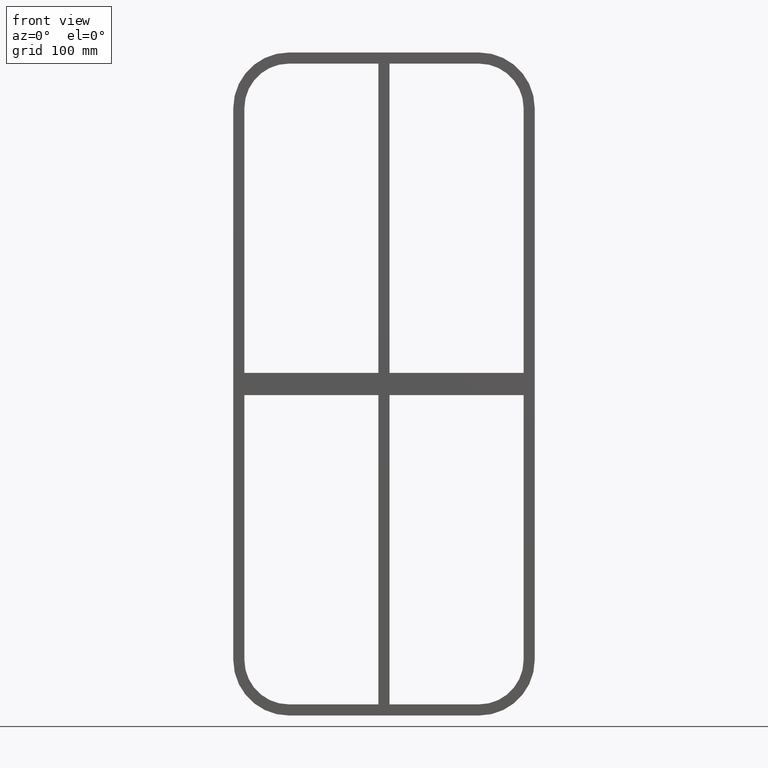
[diagram: clean part render]
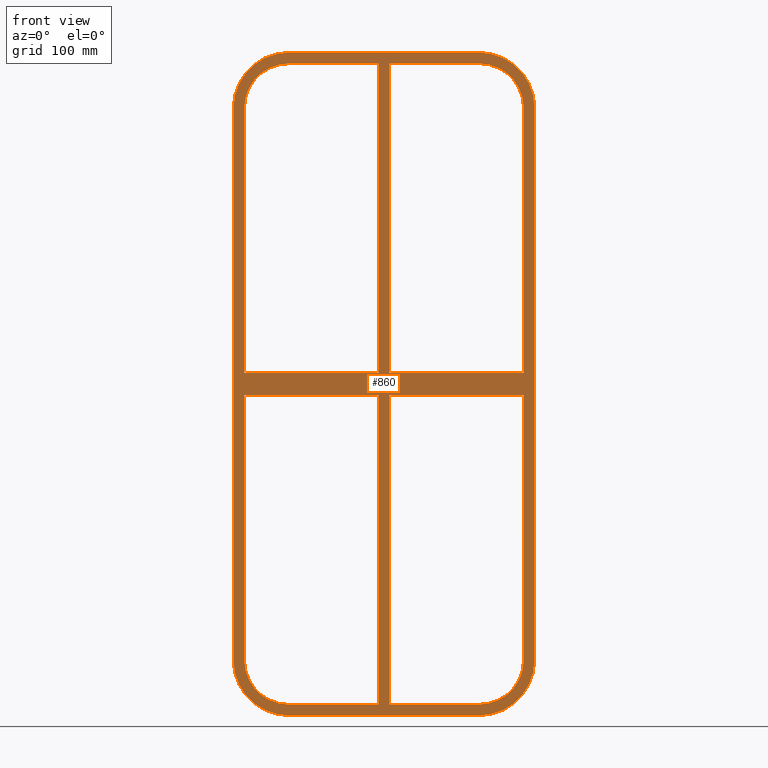
[diagram: same view with one face highlighted and labeled with its STEP entity id]
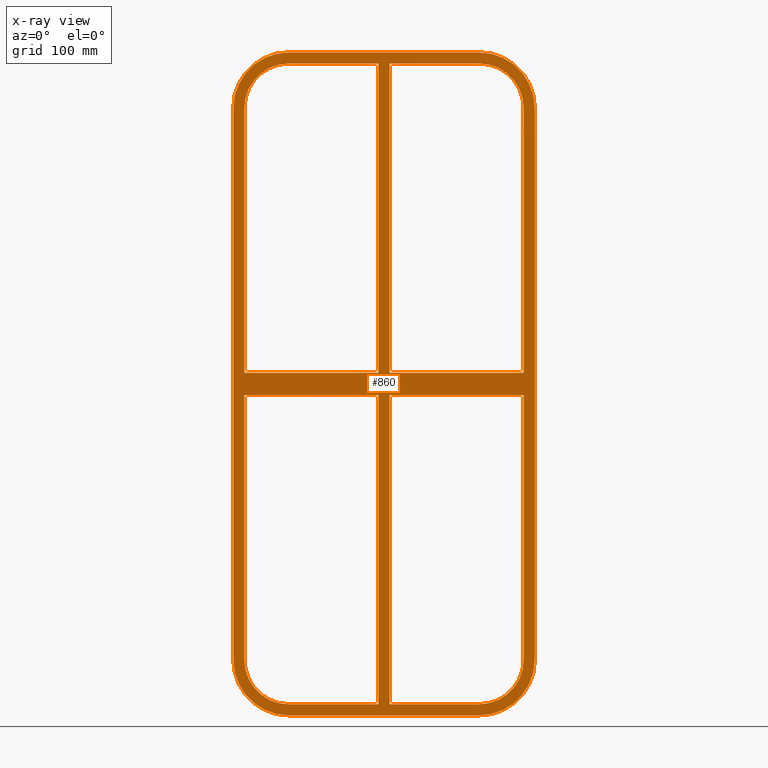
[diagram: x-ray of the same camera — body ghosted, the highlighted face saturated]
A machine part, front view. The second image highlights one B-rep face of the part: STEP entity #860.
The next image is the same camera in x-ray: the body ghosted, the highlighted face saturated — about 0% of this face is hidden behind the body in this view.
In plain terms, the highlighted planar face has unit normal (0, 1, 0).
Its self-contained STEP definition (entity closure, byte-faithful):
#75=CARTESIAN_POINT('',(5.0,-3.0,-10.000000000009333));
#76=VERTEX_POINT('',#75);
#91=CARTESIAN_POINT('',(125.50000000000182,-3.0,-10.00000000000929));
#92=VERTEX_POINT('',#91);
#99=CARTESIAN_POINT('',(125.50000000000182,-3.0,-10.00000000000929));
#100=DIRECTION('',(-1.0,0.0,0.0));
#101=VECTOR('',#100,120.50000000000182);
#102=LINE('',#99,#101);
#103=EDGE_CURVE('',#92,#76,#102,.T.);
#113=CARTESIAN_POINT('',(-5.000000000001457,-3.0,-10.000000000009337));
#114=VERTEX_POINT('',#113);
#123=CARTESIAN_POINT('',(-125.49999999999977,-3.0,-10.000000000009379));
#124=VERTEX_POINT('',#123);
#125=CARTESIAN_POINT('',(-5.00000000000145,-3.0,-10.000000000009337));
#126=DIRECTION('',(-1.0,0.0,0.0));
#127=VECTOR('',#126,120.49999999999832);
#128=LINE('',#125,#127);
#129=EDGE_CURVE('',#114,#124,#128,.T.);
#153=CARTESIAN_POINT('',(5.0,-3.0,10.0));
#154=VERTEX_POINT('',#153);
#163=CARTESIAN_POINT('',(125.4999999999999,-3.0,10.0));
#164=VERTEX_POINT('',#163);
#165=CARTESIAN_POINT('',(5.0,-3.0,10.0));
#166=DIRECTION('',(1.0,0.0,0.0));
#167=VECTOR('',#166,120.49999999999989);
#168=LINE('',#165,#167);
#169=EDGE_CURVE('',#154,#164,#168,.T.);
#195=CARTESIAN_POINT('',(-5.000000000001457,-3.0,10.0));
#196=VERTEX_POINT('',#195);
#211=CARTESIAN_POINT('',(-125.49999999999977,-3.0,10.0));
#212=VERTEX_POINT('',#211);
#219=CARTESIAN_POINT('',(-125.49999999999977,-3.0,10.0));
#220=DIRECTION('',(1.0,0.0,0.0));
#221=VECTOR('',#220,120.49999999999832);
#222=LINE('',#219,#221);
#223=EDGE_CURVE('',#212,#196,#222,.T.);
#242=CARTESIAN_POINT('',(-125.50000000000004,-3.0,248.00000000000006));
#243=VERTEX_POINT('',#242);
#250=CARTESIAN_POINT('',(-125.50000000000004,-3.0,10.0));
#251=DIRECTION('',(0.0,0.0,1.0));
#252=VECTOR('',#251,238.0);
#253=LINE('',#250,#252);
#254=EDGE_CURVE('',#212,#243,#253,.T.);
#273=CARTESIAN_POINT('',(125.50000000000004,-3.0,-248.00000000000006));
#274=VERTEX_POINT('',#273);
#281=CARTESIAN_POINT('',(125.50000000000004,-3.0,-10.000000000009294));
#282=DIRECTION('',(0.0,0.0,-1.0));
#283=VECTOR('',#282,237.99999999999079);
#284=LINE('',#281,#283);
#285=EDGE_CURVE('',#92,#274,#284,.T.);
#296=CARTESIAN_POINT('',(125.50000000000004,-3.0,248.00000000000006));
#297=VERTEX_POINT('',#296);
#298=CARTESIAN_POINT('',(125.50000000000004,-3.0,248.00000000000003));
#299=DIRECTION('',(0.0,0.0,-1.0));
#300=VECTOR('',#299,238.00000000000003);
#301=LINE('',#298,#300);
#302=EDGE_CURVE('',#297,#164,#301,.T.);
#518=CARTESIAN_POINT('',(-5.00000000000151,-3.0,288.00000000000006));
#519=VERTEX_POINT('',#518);
#520=CARTESIAN_POINT('',(-5.000000000001458,-3.0,10.0));
#521=DIRECTION('',(0.0,0.0,1.0));
#522=VECTOR('',#521,278.00000000000006);
#523=LINE('',#520,#522);
#524=EDGE_CURVE('',#196,#519,#523,.T.);
#543=CARTESIAN_POINT('',(5.0,-3.0,288.00000000000006));
#544=VERTEX_POINT('',#543);
#551=CARTESIAN_POINT('',(5.0,-3.0,288.00000000000006));
#552=DIRECTION('',(0.0,0.0,-1.0));
#553=VECTOR('',#552,278.00000000000006);
#554=LINE('',#551,#553);
#555=EDGE_CURVE('',#544,#154,#554,.T.);
#567=CARTESIAN_POINT('',(-5.000000000001403,-3.0,-288.00000000000006));
#568=VERTEX_POINT('',#567);
#575=CARTESIAN_POINT('',(-5.000000000001403,-3.0,-288.00000000000006));
#576=DIRECTION('',(0.0,0.0,1.0));
#577=VECTOR('',#576,277.99999999999068);
#578=LINE('',#575,#577);
#579=EDGE_CURVE('',#568,#114,#578,.T.);
#590=CARTESIAN_POINT('',(5.0,-3.0,-287.99999999998471));
#591=VERTEX_POINT('',#590);
#592=CARTESIAN_POINT('',(5.0,-3.0,-10.000000000009322));
#593=DIRECTION('',(0.0,0.0,-1.0));
#594=VECTOR('',#593,277.99999999997539);
#595=LINE('',#592,#594);
#596=EDGE_CURVE('',#76,#591,#595,.T.);
#615=CARTESIAN_POINT('',(-85.500000000000043,-3.0,-288.00000000000006));
#616=VERTEX_POINT('',#615);
#623=CARTESIAN_POINT('',(-5.0000000000014,-3.0,-288.00000000000006));
#624=DIRECTION('',(-1.0,0.0,0.0));
#625=VECTOR('',#624,80.499999999998636);
#626=LINE('',#623,#625);
#627=EDGE_CURVE('',#568,#616,#626,.T.);
#638=CARTESIAN_POINT('',(85.500000000000043,-3.0,-288.00000000000006));
#639=VERTEX_POINT('',#638);
#640=CARTESIAN_POINT('',(85.500000000000043,-3.0,-288.00000000000006));
#641=DIRECTION('',(-1.0,0.0,0.0));
#642=VECTOR('',#641,80.500000000000043);
#643=LINE('',#640,#642);
#644=EDGE_CURVE('',#639,#591,#643,.T.);
#663=CARTESIAN_POINT('',(85.500000000000043,-3.0,288.00000000000006));
#664=VERTEX_POINT('',#663);
#671=CARTESIAN_POINT('',(4.999999999999993,-3.0,288.00000000000006));
#672=DIRECTION('',(1.0,0.0,0.0));
#673=VECTOR('',#672,80.500000000000057);
#674=LINE('',#671,#673);
#675=EDGE_CURVE('',#544,#664,#674,.T.);
#686=CARTESIAN_POINT('',(-85.500000000000043,-3.0,288.00000000000006));
#687=VERTEX_POINT('',#686);
#688=CARTESIAN_POINT('',(-85.500000000000043,-3.0,288.00000000000006));
#689=DIRECTION('',(1.0,0.0,0.0));
#690=VECTOR('',#689,80.499999999998522);
#691=LINE('',#688,#690);
#692=EDGE_CURVE('',#687,#519,#691,.T.);
#710=CARTESIAN_POINT('',(135.49999999999997,-3.0,-247.99999999999997));
#711=VERTEX_POINT('',#710);
#718=CARTESIAN_POINT('',(85.499999999999972,-3.0,-298.0));
#719=VERTEX_POINT('',#718);
#720=CARTESIAN_POINT('',(85.499999999999972,-3.0,-247.99999999999997));
#721=DIRECTION('',(0.0,1.0,0.0));
#722=DIRECTION('',(0.707106781186547,0.0,-0.707106781186547));
#723=AXIS2_PLACEMENT_3D('',#720,#721,#722);
#724=CIRCLE('',#723,49.999999999999986);
#725=EDGE_CURVE('',#711,#719,#724,.T.);
#736=CARTESIAN_POINT('',(-4.489040E-014,-3.0,2.950350E-014));
#737=DIRECTION('',(0.0,1.0,0.0));
#738=DIRECTION('',(0.0,0.0,1.0));
#739=AXIS2_PLACEMENT_3D('',#736,#737,#738);
#740=PLANE('',#739);
#741=ORIENTED_EDGE('',*,*,#725,.F.);
#742=CARTESIAN_POINT('',(135.49999999999997,-3.0,248.00000000000006));
#743=VERTEX_POINT('',#742);
#744=CARTESIAN_POINT('',(135.49999999999997,-3.0,-247.99999999999994));
#745=DIRECTION('',(0.0,0.0,1.0));
#746=VECTOR('',#745,496.0);
#747=LINE('',#744,#746);
#748=EDGE_CURVE('',#711,#743,#747,.T.);
#749=ORIENTED_EDGE('',*,*,#748,.T.);
#750=CARTESIAN_POINT('',(85.499999999999972,-3.0,298.00000000000006));
#751=VERTEX_POINT('',#750);
#752=CARTESIAN_POINT('',(85.499999999999972,-3.0,248.00000000000006));
#753=DIRECTION('',(0.0,1.0,0.0));
#754=DIRECTION('',(0.707106781186547,0.0,0.707106781186547));
#755=AXIS2_PLACEMENT_3D('',#752,#753,#754);
#756=CIRCLE('',#755,49.999999999999986);
#757=EDGE_CURVE('',#751,#743,#756,.T.);
#758=ORIENTED_EDGE('',*,*,#757,.F.);
#759=CARTESIAN_POINT('',(-85.500000000000043,-3.0,298.00000000000006));
#760=VERTEX_POINT('',#759);
#761=CARTESIAN_POINT('',(85.499999999999943,-3.0,298.00000000000006));
#762=DIRECTION('',(-1.0,0.0,0.0));
#763=VECTOR('',#762,171.0);
#764=LINE('',#761,#763);
#765=EDGE_CURVE('',#751,#760,#764,.T.);
#766=ORIENTED_EDGE('',*,*,#765,.T.);
#767=CARTESIAN_POINT('',(-135.50000000000006,-3.0,248.00000000000006));
#768=VERTEX_POINT('',#767);
#769=CARTESIAN_POINT('',(-85.500000000000043,-3.0,248.00000000000006));
#770=DIRECTION('',(0.0,1.0,0.0));
#771=DIRECTION('',(-0.707106781186547,0.0,0.707106781186547));
#772=AXIS2_PLACEMENT_3D('',#769,#770,#771);
#773=CIRCLE('',#772,49.999999999999986);
#774=EDGE_CURVE('',#768,#760,#773,.T.);
#775=ORIENTED_EDGE('',*,*,#774,.F.);
#776=CARTESIAN_POINT('',(-135.50000000000006,-3.0,-247.99999999999997));
#777=VERTEX_POINT('',#776);
#778=CARTESIAN_POINT('',(-135.50000000000006,-3.0,248.0));
#779=DIRECTION('',(0.0,0.0,-1.0));
#780=VECTOR('',#779,496.0);
#781=LINE('',#778,#780);
#782=EDGE_CURVE('',#768,#777,#781,.T.);
#783=ORIENTED_EDGE('',*,*,#782,.T.);
#784=CARTESIAN_POINT('',(-85.500000000000043,-3.0,-298.0));
#785=VERTEX_POINT('',#784);
#786=CARTESIAN_POINT('',(-85.500000000000043,-3.0,-247.99999999999997));
#787=DIRECTION('',(0.0,1.0,0.0));
#788=DIRECTION('',(-0.707106781186547,0.0,-0.707106781186547));
#789=AXIS2_PLACEMENT_3D('',#786,#787,#788);
#790=CIRCLE('',#789,49.999999999999986);
#791=EDGE_CURVE('',#785,#777,#790,.T.);
#792=ORIENTED_EDGE('',*,*,#791,.F.);
#793=CARTESIAN_POINT('',(-85.500000000000028,-3.0,-298.0));
#794=DIRECTION('',(1.0,0.0,0.0));
#795=VECTOR('',#794,171.0);
#796=LINE('',#793,#795);
#797=EDGE_CURVE('',#785,#719,#796,.T.);
#798=ORIENTED_EDGE('',*,*,#797,.T.);
#799=EDGE_LOOP('',(#741,#749,#758,#766,#775,#783,#792,#798));
#800=FACE_OUTER_BOUND('',#799,.T.);
#801=ORIENTED_EDGE('',*,*,#254,.T.);
#802=CARTESIAN_POINT('',(-85.500000000000043,-3.0,248.00000000000006));
#803=DIRECTION('',(0.0,-1.0,0.0));
#804=DIRECTION('',(-0.707106781186547,0.0,0.707106781186547));
#805=AXIS2_PLACEMENT_3D('',#802,#803,#804);
#806=CIRCLE('',#805,39.999999999999993);
#807=EDGE_CURVE('',#687,#243,#806,.T.);
#808=ORIENTED_EDGE('',*,*,#807,.F.);
#809=ORIENTED_EDGE('',*,*,#692,.T.);
#810=ORIENTED_EDGE('',*,*,#524,.F.);
#811=ORIENTED_EDGE('',*,*,#223,.F.);
#812=EDGE_LOOP('',(#801,#808,#809,#810,#811));
#813=FACE_BOUND('',#812,.T.);
#814=ORIENTED_EDGE('',*,*,#285,.T.);
#815=CARTESIAN_POINT('',(85.500000000000043,-3.0,-248.00000000000006));
#816=DIRECTION('',(0.0,-1.0,0.0));
#817=DIRECTION('',(0.707106781186547,0.0,-0.707106781186547));
#818=AXIS2_PLACEMENT_3D('',#815,#816,#817);
#819=CIRCLE('',#818,39.999999999999993);
#820=EDGE_CURVE('',#639,#274,#819,.T.);
#821=ORIENTED_EDGE('',*,*,#820,.F.);
#822=ORIENTED_EDGE('',*,*,#644,.T.);
#823=ORIENTED_EDGE('',*,*,#596,.F.);
#824=ORIENTED_EDGE('',*,*,#103,.F.);
#825=EDGE_LOOP('',(#814,#821,#822,#823,#824));
#826=FACE_BOUND('',#825,.T.);
#827=ORIENTED_EDGE('',*,*,#129,.F.);
#828=ORIENTED_EDGE('',*,*,#579,.F.);
#829=ORIENTED_EDGE('',*,*,#627,.T.);
#830=CARTESIAN_POINT('',(-125.50000000000004,-3.0,-248.00000000000006));
#831=VERTEX_POINT('',#830);
#832=CARTESIAN_POINT('',(-85.500000000000043,-3.0,-248.00000000000006));
#833=DIRECTION('',(0.0,-1.0,0.0));
#834=DIRECTION('',(-0.707106781186547,0.0,-0.707106781186547));
#835=AXIS2_PLACEMENT_3D('',#832,#833,#834);
#836=CIRCLE('',#835,39.999999999999993);
#837=EDGE_CURVE('',#831,#616,#836,.T.);
#838=ORIENTED_EDGE('',*,*,#837,.F.);
#839=CARTESIAN_POINT('',(-125.50000000000004,-3.0,-248.00000000000006));
#840=DIRECTION('',(0.0,0.0,1.0));
#841=VECTOR('',#840,237.99999999999068);
#842=LINE('',#839,#841);
#843=EDGE_CURVE('',#831,#124,#842,.T.);
#844=ORIENTED_EDGE('',*,*,#843,.T.);
#845=EDGE_LOOP('',(#827,#828,#829,#838,#844));
#846=FACE_BOUND('',#845,.T.);
#847=ORIENTED_EDGE('',*,*,#169,.F.);
#848=ORIENTED_EDGE('',*,*,#555,.F.);
#849=ORIENTED_EDGE('',*,*,#675,.T.);
#850=CARTESIAN_POINT('',(85.500000000000043,-3.0,248.00000000000006));
#851=DIRECTION('',(0.0,-1.0,0.0));
#852=DIRECTION('',(0.707106781186547,0.0,0.707106781186547));
#853=AXIS2_PLACEMENT_3D('',#850,#851,#852);
#854=CIRCLE('',#853,39.999999999999993);
#855=EDGE_CURVE('',#297,#664,#854,.T.);
#856=ORIENTED_EDGE('',*,*,#855,.F.);
#857=ORIENTED_EDGE('',*,*,#302,.T.);
#858=EDGE_LOOP('',(#847,#848,#849,#856,#857));
#859=FACE_BOUND('',#858,.T.);
#860=ADVANCED_FACE('',(#800,#813,#826,#846,#859),#740,.F.);